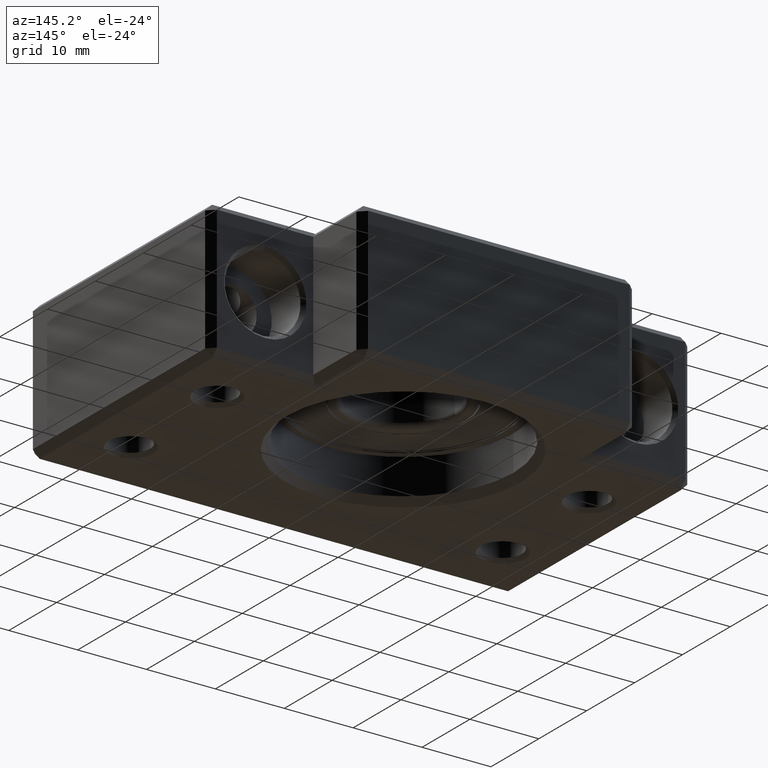
[diagram: clean part render]
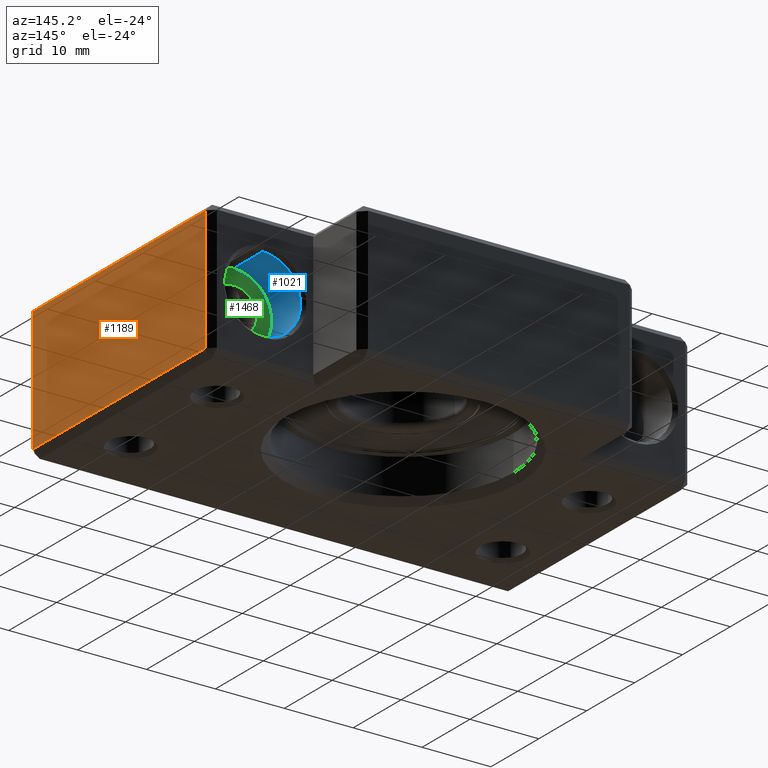
[diagram: same view with three faces highlighted in distinct colors, each labeled with its STEP entity id]
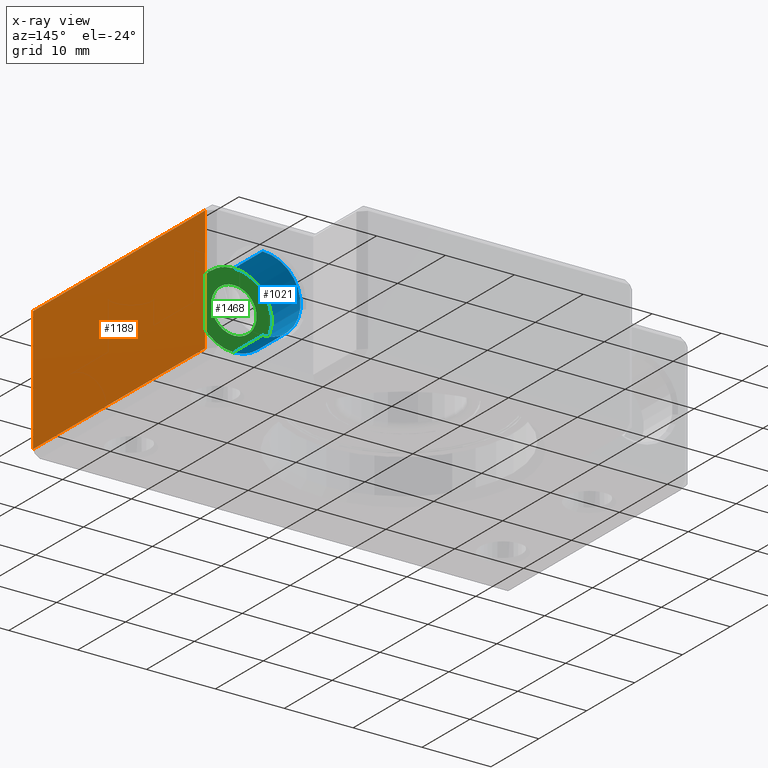
[diagram: x-ray of the same camera — body ghosted, the three highlighted faces saturated]
A machine part, auxiliary view with three faces highlighted in distinct colors.
The next image is the same camera in x-ray (body ghosted, the three faces saturated) — at least one of them is partly hidden behind the body in this view.
Their STEP definitions:

[orange] entity #1189 — the highlighted planar face has unit normal (-1, 0, 0).
#1121 = ORIENTED_EDGE ( 'NONE', *, *, #1123, .T. ) ;
#1123 = EDGE_CURVE ( 'NONE', #1197, #1125, #4168, .T. ) ;
#1125 = VERTEX_POINT ( 'NONE', #4164 ) ;
#1127 = ORIENTED_EDGE ( 'NONE', *, *, #1129, .T. ) ;
#1129 = EDGE_CURVE ( 'NONE', #1125, #1131, #4163, .T. ) ;
#1131 = VERTEX_POINT ( 'NONE', #4223 ) ;
#1134 = ORIENTED_EDGE ( 'NONE', *, *, #1135, .T. ) ;
#1135 = EDGE_CURVE ( 'NONE', #1131, #1195, #4215, .T. ) ;
#1189 = ADVANCED_FACE ( 'NONE', ( #4321 ), #4317, .F. ) ;
#1190 = EDGE_LOOP ( 'NONE', ( #1192, #1121, #1127, #1134 ) ) ;
#1192 = ORIENTED_EDGE ( 'NONE', *, *, #1194, .T. ) ;
#1194 = EDGE_CURVE ( 'NONE', #1195, #1197, #4315, .T. ) ;
#1195 = VERTEX_POINT ( 'NONE', #4308 ) ;
#1197 = VERTEX_POINT ( 'NONE', #4307 ) ;
#4163 = LINE ( 'NONE', #4226, #4225 ) ;
#4164 = CARTESIAN_POINT ( 'NONE',  ( 35.00000000000001400, 1.000000000000023300, -8.999999999999985800 ) ) ;
#4165 = DIRECTION ( 'NONE',  ( 0.0000000000000000000, 0.0000000000000000000, -1.000000000000000000 ) ) ;
#4166 = VECTOR ( 'NONE', #4165, 1000.000000000000000 ) ;
#4167 = CARTESIAN_POINT ( 'NONE',  ( 35.00000000000001400, 1.000000000000023300, 10.00000000000000000 ) ) ;
#4168 = LINE ( 'NONE', #4167, #4166 ) ;
#4212 = DIRECTION ( 'NONE',  ( 0.0000000000000000000, 0.0000000000000000000, 1.000000000000000000 ) ) ;
#4213 = VECTOR ( 'NONE', #4212, 1000.000000000000000 ) ;
#4214 = CARTESIAN_POINT ( 'NONE',  ( 35.00000000000002100, 37.00000000000000700, 10.00000000000000000 ) ) ;
#4215 = LINE ( 'NONE', #4214, #4213 ) ;
#4223 = CARTESIAN_POINT ( 'NONE',  ( 35.00000000000002100, 37.00000000000000700, -8.999999999999985800 ) ) ;
#4224 = DIRECTION ( 'NONE',  ( 1.826024711554534200E-016, 1.000000000000000000, 0.0000000000000000000 ) ) ;
#4225 = VECTOR ( 'NONE', #4224, 1000.000000000000000 ) ;
#4226 = CARTESIAN_POINT ( 'NONE',  ( 35.00000000000001400, 8.572527594031473000E-015, -8.999999999999985800 ) ) ;
#4307 = CARTESIAN_POINT ( 'NONE',  ( 35.00000000000001400, 1.000000000000023300, 9.000000000000000000 ) ) ;
#4308 = CARTESIAN_POINT ( 'NONE',  ( 35.00000000000002100, 37.00000000000000700, 9.000000000000000000 ) ) ;
#4309 = DIRECTION ( 'NONE',  ( -1.826024711554534200E-016, -1.000000000000000000, -0.0000000000000000000 ) ) ;
#4310 = VECTOR ( 'NONE', #4309, 1000.000000000000000 ) ;
#4311 = CARTESIAN_POINT ( 'NONE',  ( 35.00000000000001400, 8.572527594031473000E-015, 9.000000000000000000 ) ) ;
#4312 = DIRECTION ( 'NONE',  ( -1.826024711554534200E-016, -1.000000000000000000, 0.0000000000000000000 ) ) ;
#4313 = DIRECTION ( 'NONE',  ( -1.000000000000000000, 1.826024711554534200E-016, 0.0000000000000000000 ) ) ;
#4314 = AXIS2_PLACEMENT_3D ( 'NONE', #4316, #4313, #4312 ) ;
#4315 = LINE ( 'NONE', #4311, #4310 ) ;
#4316 = CARTESIAN_POINT ( 'NONE',  ( 35.00000000000001400, 8.572527594031473000E-015, 10.00000000000000000 ) ) ;
#4317 = PLANE ( 'NONE',  #4314 ) ;
#4321 = FACE_OUTER_BOUND ( 'NONE', #1190, .T. ) ;

[blue] entity #1021 — the highlighted cylindrical surface (partial cylindrical patch) has radius 5.5 mm, axis along (-0, 1, -0).
#795 = VERTEX_POINT ( 'NONE', #3406 ) ;
#797 = EDGE_CURVE ( 'NONE', #795, #833, #3404, .T. ) ;
#833 = VERTEX_POINT ( 'NONE', #3466 ) ;
#984 = EDGE_CURVE ( 'NONE', #1024, #985, #3789, .T. ) ;
#985 = VERTEX_POINT ( 'NONE', #3784 ) ;
#986 = ORIENTED_EDGE ( 'NONE', *, *, #987, .T. ) ;
#987 = EDGE_CURVE ( 'NONE', #1024, #795, #3783, .T. ) ;
#988 = ORIENTED_EDGE ( 'NONE', *, *, #797, .T. ) ;
#989 = ORIENTED_EDGE ( 'NONE', *, *, #990, .F. ) ;
#990 = EDGE_CURVE ( 'NONE', #985, #833, #3779, .T. ) ;
#1021 = ADVANCED_FACE ( 'NONE', ( #3874 ), #3919, .F. ) ;
#1022 = EDGE_LOOP ( 'NONE', ( #1023, #986, #988, #989 ) ) ;
#1023 = ORIENTED_EDGE ( 'NONE', *, *, #984, .F. ) ;
#1024 = VERTEX_POINT ( 'NONE', #3920 ) ;
#3400 = DIRECTION ( 'NONE',  ( 0.0000000000000000000, 0.0000000000000000000, -1.000000000000000000 ) ) ;
#3401 = DIRECTION ( 'NONE',  ( 0.0000000000000000000, 1.000000000000000000, 0.0000000000000000000 ) ) ;
#3402 = CARTESIAN_POINT ( 'NONE',  ( 27.00000000000000400, 37.49999999999998600, -6.613092715395707500E-015 ) ) ;
#3403 = AXIS2_PLACEMENT_3D ( 'NONE', #3402, #3401, #3400 ) ;
#3404 = CIRCLE ( 'NONE', #3403, 5.499999999999998200 ) ;
#3406 = CARTESIAN_POINT ( 'NONE',  ( 27.00000000000000400, 37.49999999999998600, -5.500000000000005300 ) ) ;
#3466 = CARTESIAN_POINT ( 'NONE',  ( 27.00000000000000400, 37.49999999999998600, 5.499999999999991100 ) ) ;
#3776 = DIRECTION ( 'NONE',  ( -0.0000000000000000000, 1.000000000000000000, -0.0000000000000000000 ) ) ;
#3777 = VECTOR ( 'NONE', #3776, 1000.000000000000000 ) ;
#3778 = CARTESIAN_POINT ( 'NONE',  ( 27.00000000000000400, 38.00000000000000000, 5.499999999999991100 ) ) ;
#3779 = LINE ( 'NONE', #3778, #3777 ) ;
#3780 = DIRECTION ( 'NONE',  ( -0.0000000000000000000, 1.000000000000000000, -0.0000000000000000000 ) ) ;
#3781 = VECTOR ( 'NONE', #3780, 1000.000000000000000 ) ;
#3782 = CARTESIAN_POINT ( 'NONE',  ( 27.00000000000000400, 38.00000000000000000, -5.500000000000005300 ) ) ;
#3783 = LINE ( 'NONE', #3782, #3781 ) ;
#3784 = CARTESIAN_POINT ( 'NONE',  ( 27.00000000000000400, 31.50000000000000000, 5.499999999999991100 ) ) ;
#3785 = DIRECTION ( 'NONE',  ( 0.0000000000000000000, 0.0000000000000000000, 1.000000000000000000 ) ) ;
#3786 = DIRECTION ( 'NONE',  ( -0.0000000000000000000, 1.000000000000000000, -0.0000000000000000000 ) ) ;
#3787 = CARTESIAN_POINT ( 'NONE',  ( 27.00000000000000400, 31.50000000000000000, -6.613092715395707500E-015 ) ) ;
#3788 = AXIS2_PLACEMENT_3D ( 'NONE', #3787, #3786, #3785 ) ;
#3789 = CIRCLE ( 'NONE', #3788, 5.499999999999998200 ) ;
#3874 = FACE_OUTER_BOUND ( 'NONE', #1022, .T. ) ;
#3915 = DIRECTION ( 'NONE',  ( 0.0000000000000000000, 0.0000000000000000000, 1.000000000000000000 ) ) ;
#3916 = DIRECTION ( 'NONE',  ( -0.0000000000000000000, 1.000000000000000000, -0.0000000000000000000 ) ) ;
#3917 = CARTESIAN_POINT ( 'NONE',  ( 27.00000000000000400, 38.00000000000000000, -6.613092715395707500E-015 ) ) ;
#3918 = AXIS2_PLACEMENT_3D ( 'NONE', #3917, #3916, #3915 ) ;
#3919 = CYLINDRICAL_SURFACE ( 'NONE', #3918, 5.499999999999998200 ) ;
#3920 = CARTESIAN_POINT ( 'NONE',  ( 27.00000000000000400, 31.50000000000000000, -5.500000000000005300 ) ) ;

[green] entity #1468 — the highlighted planar face has unit normal (0, -1, 0).
#722 = VERTEX_POINT ( 'NONE', #3273 ) ;
#736 = EDGE_CURVE ( 'NONE', #750, #722, #3260, .T. ) ;
#750 = VERTEX_POINT ( 'NONE', #3311 ) ;
#984 = EDGE_CURVE ( 'NONE', #1024, #985, #3789, .T. ) ;
#985 = VERTEX_POINT ( 'NONE', #3784 ) ;
#1024 = VERTEX_POINT ( 'NONE', #3920 ) ;
#1419 = EDGE_CURVE ( 'NONE', #722, #750, #4762, .T. ) ;
#1468 = ADVANCED_FACE ( 'NONE', ( #4860, #4855 ), #4854, .F. ) ;
#1469 = EDGE_LOOP ( 'NONE', ( #1471, #1473 ) ) ;
#1471 = ORIENTED_EDGE ( 'NONE', *, *, #1419, .F. ) ;
#1473 = ORIENTED_EDGE ( 'NONE', *, *, #736, .F. ) ;
#1475 = EDGE_LOOP ( 'NONE', ( #1477, #1481 ) ) ;
#1477 = ORIENTED_EDGE ( 'NONE', *, *, #1478, .T. ) ;
#1478 = EDGE_CURVE ( 'NONE', #985, #1024, #4848, .T. ) ;
#1481 = ORIENTED_EDGE ( 'NONE', *, *, #984, .T. ) ;
#3256 = DIRECTION ( 'NONE',  ( 0.0000000000000000000, 0.0000000000000000000, 1.000000000000000000 ) ) ;
#3257 = DIRECTION ( 'NONE',  ( -0.0000000000000000000, 1.000000000000000000, -0.0000000000000000000 ) ) ;
#3258 = CARTESIAN_POINT ( 'NONE',  ( 27.00000000000000400, 31.50000000000000000, -6.613092715395707500E-015 ) ) ;
#3259 = AXIS2_PLACEMENT_3D ( 'NONE', #3258, #3257, #3256 ) ;
#3260 = CIRCLE ( 'NONE', #3259, 3.300000000000004300 ) ;
#3273 = CARTESIAN_POINT ( 'NONE',  ( 27.00000000000000400, 31.50000000000000000, 3.299999999999997600 ) ) ;
#3311 = CARTESIAN_POINT ( 'NONE',  ( 27.00000000000000400, 31.50000000000000000, -3.300000000000010500 ) ) ;
#3784 = CARTESIAN_POINT ( 'NONE',  ( 27.00000000000000400, 31.50000000000000000, 5.499999999999991100 ) ) ;
#3785 = DIRECTION ( 'NONE',  ( 0.0000000000000000000, 0.0000000000000000000, 1.000000000000000000 ) ) ;
#3786 = DIRECTION ( 'NONE',  ( -0.0000000000000000000, 1.000000000000000000, -0.0000000000000000000 ) ) ;
#3787 = CARTESIAN_POINT ( 'NONE',  ( 27.00000000000000400, 31.50000000000000000, -6.613092715395707500E-015 ) ) ;
#3788 = AXIS2_PLACEMENT_3D ( 'NONE', #3787, #3786, #3785 ) ;
#3789 = CIRCLE ( 'NONE', #3788, 5.499999999999998200 ) ;
#3920 = CARTESIAN_POINT ( 'NONE',  ( 27.00000000000000400, 31.50000000000000000, -5.500000000000005300 ) ) ;
#4754 = DIRECTION ( 'NONE',  ( 0.0000000000000000000, 0.0000000000000000000, 1.000000000000000000 ) ) ;
#4755 = DIRECTION ( 'NONE',  ( -0.0000000000000000000, 1.000000000000000000, -0.0000000000000000000 ) ) ;
#4756 = CARTESIAN_POINT ( 'NONE',  ( 27.00000000000000400, 31.50000000000000000, -6.613092715395707500E-015 ) ) ;
#4757 = AXIS2_PLACEMENT_3D ( 'NONE', #4756, #4755, #4754 ) ;
#4762 = CIRCLE ( 'NONE', #4757, 3.300000000000004300 ) ;
#4845 = DIRECTION ( 'NONE',  ( 0.0000000000000000000, 0.0000000000000000000, 1.000000000000000000 ) ) ;
#4846 = DIRECTION ( 'NONE',  ( -0.0000000000000000000, 1.000000000000000000, -0.0000000000000000000 ) ) ;
#4847 = AXIS2_PLACEMENT_3D ( 'NONE', #4852, #4846, #4845 ) ;
#4848 = CIRCLE ( 'NONE', #4847, 5.499999999999998200 ) ;
#4849 = DIRECTION ( 'NONE',  ( 0.0000000000000000000, -0.0000000000000000000, -1.000000000000000000 ) ) ;
#4850 = DIRECTION ( 'NONE',  ( 0.0000000000000000000, -1.000000000000000000, 0.0000000000000000000 ) ) ;
#4851 = AXIS2_PLACEMENT_3D ( 'NONE', #4853, #4850, #4849 ) ;
#4852 = CARTESIAN_POINT ( 'NONE',  ( 27.00000000000000400, 31.50000000000000000, -6.613092715395707500E-015 ) ) ;
#4853 = CARTESIAN_POINT ( 'NONE',  ( 30.30000000000000800, 31.50000000000000000, -6.613092715395707500E-015 ) ) ;
#4854 = PLANE ( 'NONE',  #4851 ) ;
#4855 = FACE_OUTER_BOUND ( 'NONE', #1475, .T. ) ;
#4860 = FACE_BOUND ( 'NONE', #1469, .T. ) ;